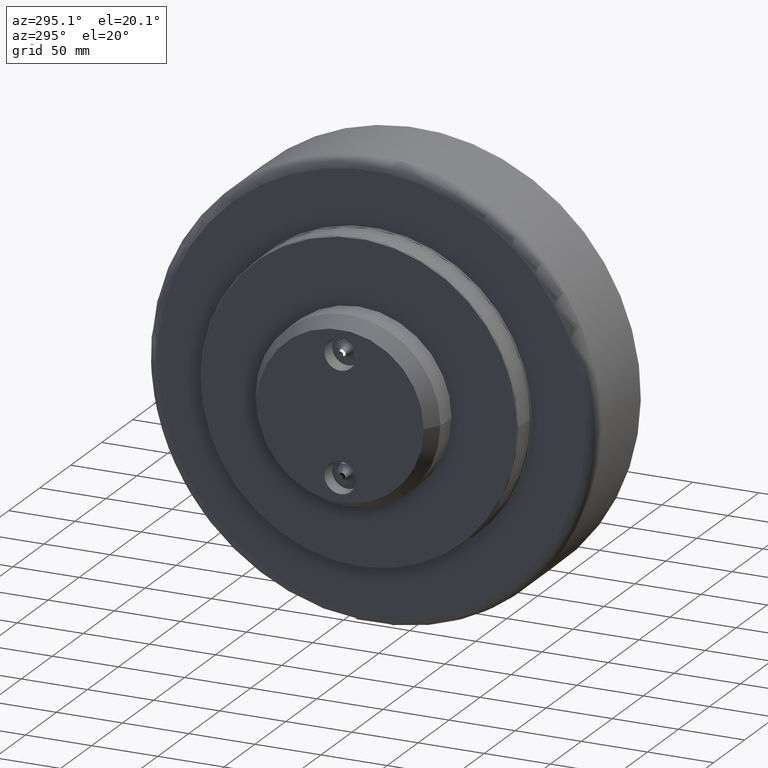
[diagram: clean part render]
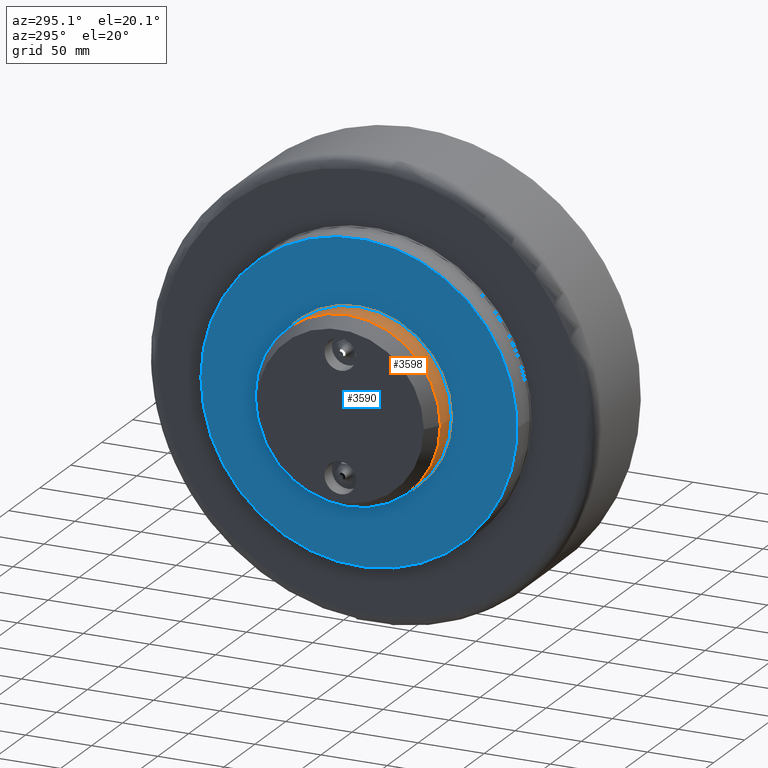
[diagram: same view with the hole feature highlighted: cylindrical wall and planar end face, labeled with their STEP entity ids]
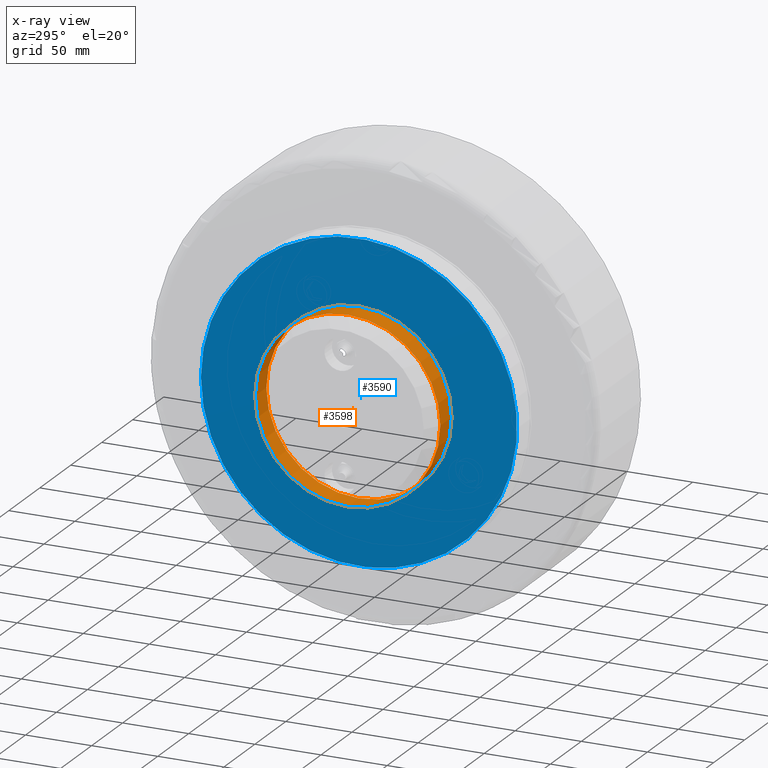
[diagram: x-ray of the same camera — body ghosted, the hole faces saturated]
A machine part, auxiliary view. The highlighted faces form one hole feature of diameter 140 mm: the cylindrical wall (entity #3598, orange) and its adjacent planar end face (entity #3590, blue) — they share a circular edge in the B-rep.
The next image is the same camera in x-ray (body ghosted, the hole faces saturated) — the bore reads through the body.
Wall:
#42=CYLINDRICAL_SURFACE('',#4009,70.);
#285=CIRCLE('',#3988,70.);
#286=CIRCLE('',#3989,70.);
#297=CIRCLE('',#4007,70.);
#298=CIRCLE('',#4008,70.);
#531=FACE_OUTER_BOUND('',#762,.T.);
#762=EDGE_LOOP('',(#2898,#2899,#2900,#2901,#2902,#2903));
#923=LINE('',#6069,#1100);
#1100=VECTOR('',#4886,70.);
#1533=VERTEX_POINT('',#6029);
#1534=VERTEX_POINT('',#6030);
#1545=VERTEX_POINT('',#6063);
#1546=VERTEX_POINT('',#6064);
#1999=EDGE_CURVE('',#1533,#1534,#285,.T.);
#2000=EDGE_CURVE('',#1534,#1533,#286,.T.);
#2014=EDGE_CURVE('',#1545,#1546,#297,.T.);
#2015=EDGE_CURVE('',#1546,#1545,#298,.T.);
#2017=EDGE_CURVE('',#1534,#1546,#923,.T.);
#2898=ORIENTED_EDGE('',*,*,#1999,.F.);
#2899=ORIENTED_EDGE('',*,*,#2000,.F.);
#2900=ORIENTED_EDGE('',*,*,#2017,.T.);
#2901=ORIENTED_EDGE('',*,*,#2015,.T.);
#2902=ORIENTED_EDGE('',*,*,#2014,.T.);
#2903=ORIENTED_EDGE('',*,*,#2017,.F.);
#3598=ADVANCED_FACE('',(#531),#42,.T.);
#3988=AXIS2_PLACEMENT_3D('',#6031,#4838,#4839);
#3989=AXIS2_PLACEMENT_3D('',#6032,#4840,#4841);
#4007=AXIS2_PLACEMENT_3D('',#6065,#4879,#4880);
#4008=AXIS2_PLACEMENT_3D('',#6066,#4881,#4882);
#4009=AXIS2_PLACEMENT_3D('',#6068,#4884,#4885);
#4838=DIRECTION('center_axis',(1.,3.23627764263203E-16,0.));
#4839=DIRECTION('ref_axis',(0.,1.,0.));
#4840=DIRECTION('center_axis',(1.,3.23627764263203E-16,0.));
#4841=DIRECTION('ref_axis',(0.,1.,0.));
#4879=DIRECTION('center_axis',(1.,3.23627764263203E-16,0.));
#4880=DIRECTION('ref_axis',(0.,1.,0.));
#4881=DIRECTION('center_axis',(1.,3.23627764263203E-16,0.));
#4882=DIRECTION('ref_axis',(0.,1.,0.));
#4884=DIRECTION('center_axis',(1.,3.23627764263203E-16,0.));
#4885=DIRECTION('ref_axis',(0.,1.,0.));
#4886=DIRECTION('',(-1.,-3.23627764263203E-16,0.));
#6029=CARTESIAN_POINT('',(-91.7494759039477,-11.1601457435733,-29.6501232824478));
#6030=CARTESIAN_POINT('',(-91.7494759039477,-151.160145743573,-29.6501232824478));
#6031=CARTESIAN_POINT('Origin',(-91.7494759039477,-81.1601457435733,-29.6501232824478));
#6032=CARTESIAN_POINT('Origin',(-91.7494759039477,-81.1601457435733,-29.6501232824478));
#6063=CARTESIAN_POINT('',(-109.749475903948,-11.1601457435733,-29.6501232824478));
#6064=CARTESIAN_POINT('',(-109.749475903948,-151.160145743573,-29.6501232824478));
#6065=CARTESIAN_POINT('Origin',(-109.749475903948,-81.1601457435733,-29.6501232824478));
#6066=CARTESIAN_POINT('Origin',(-109.749475903948,-81.1601457435733,-29.6501232824478));
#6068=CARTESIAN_POINT('Origin',(-100.749475903948,-81.1601457435733,-29.6501232824478));
#6069=CARTESIAN_POINT('',(-100.749475903948,-151.160145743573,-29.6501232824478));
End face:
#92=FACE_BOUND('',#750,.T.);
#282=CIRCLE('',#3983,119.5);
#285=CIRCLE('',#3988,70.);
#286=CIRCLE('',#3989,70.);
#523=FACE_OUTER_BOUND('',#749,.T.);
#749=EDGE_LOOP('',(#2850));
#750=EDGE_LOOP('',(#2851,#2852));
#1530=VERTEX_POINT('',#6019);
#1533=VERTEX_POINT('',#6029);
#1534=VERTEX_POINT('',#6030);
#1995=EDGE_CURVE('',#1530,#1530,#282,.T.);
#1999=EDGE_CURVE('',#1533,#1534,#285,.T.);
#2000=EDGE_CURVE('',#1534,#1533,#286,.T.);
#2850=ORIENTED_EDGE('',*,*,#1995,.F.);
#2851=ORIENTED_EDGE('',*,*,#1999,.T.);
#2852=ORIENTED_EDGE('',*,*,#2000,.T.);
#3228=PLANE('',#3987);
#3590=ADVANCED_FACE('',(#523,#92),#3228,.T.);
#3983=AXIS2_PLACEMENT_3D('',#6021,#4827,#4828);
#3987=AXIS2_PLACEMENT_3D('',#6028,#4836,#4837);
#3988=AXIS2_PLACEMENT_3D('',#6031,#4838,#4839);
#3989=AXIS2_PLACEMENT_3D('',#6032,#4840,#4841);
#4827=DIRECTION('center_axis',(1.,3.23627764263203E-16,0.));
#4828=DIRECTION('ref_axis',(3.23627764263203E-16,-1.,0.));
#4836=DIRECTION('center_axis',(-1.,-3.23627764263203E-16,0.));
#4837=DIRECTION('ref_axis',(0.,0.,1.));
#4838=DIRECTION('center_axis',(1.,3.23627764263203E-16,0.));
#4839=DIRECTION('ref_axis',(0.,1.,0.));
#4840=DIRECTION('center_axis',(1.,3.23627764263203E-16,0.));
#4841=DIRECTION('ref_axis',(0.,1.,0.));
#6019=CARTESIAN_POINT('',(-91.7494759039477,38.3398542564267,-29.6501232824478));
#6021=CARTESIAN_POINT('Origin',(-91.7494759039477,-81.1601457435733,-29.6501232824478));
#6028=CARTESIAN_POINT('Origin',(-91.7494759039477,28.8398542564267,-29.6501232824478));
#6029=CARTESIAN_POINT('',(-91.7494759039477,-11.1601457435733,-29.6501232824478));
#6030=CARTESIAN_POINT('',(-91.7494759039477,-151.160145743573,-29.6501232824478));
#6031=CARTESIAN_POINT('Origin',(-91.7494759039477,-81.1601457435733,-29.6501232824478));
#6032=CARTESIAN_POINT('Origin',(-91.7494759039477,-81.1601457435733,-29.6501232824478));